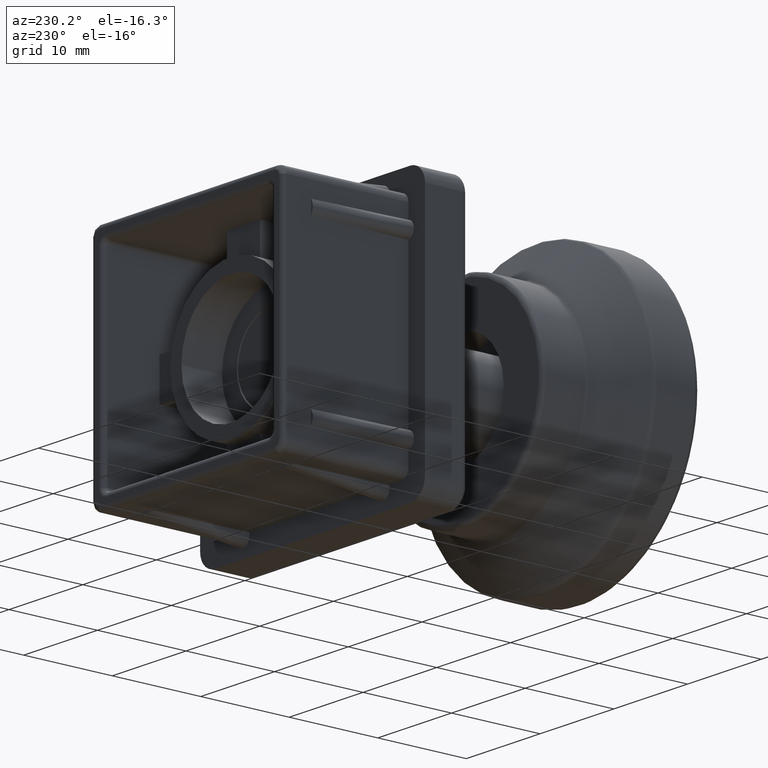
[diagram: clean part render]
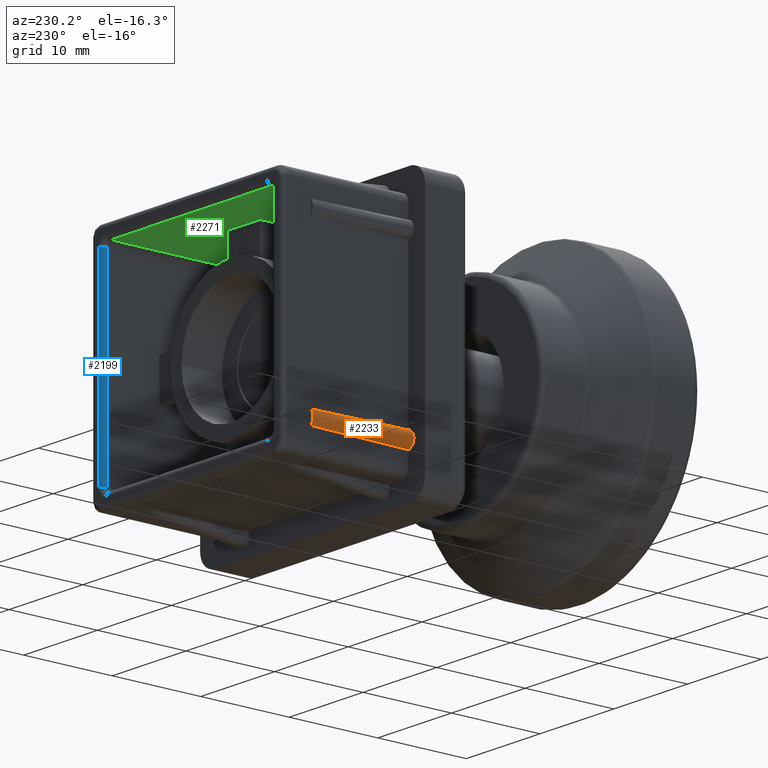
[diagram: same view with three faces highlighted in distinct colors, each labeled with its STEP entity id]
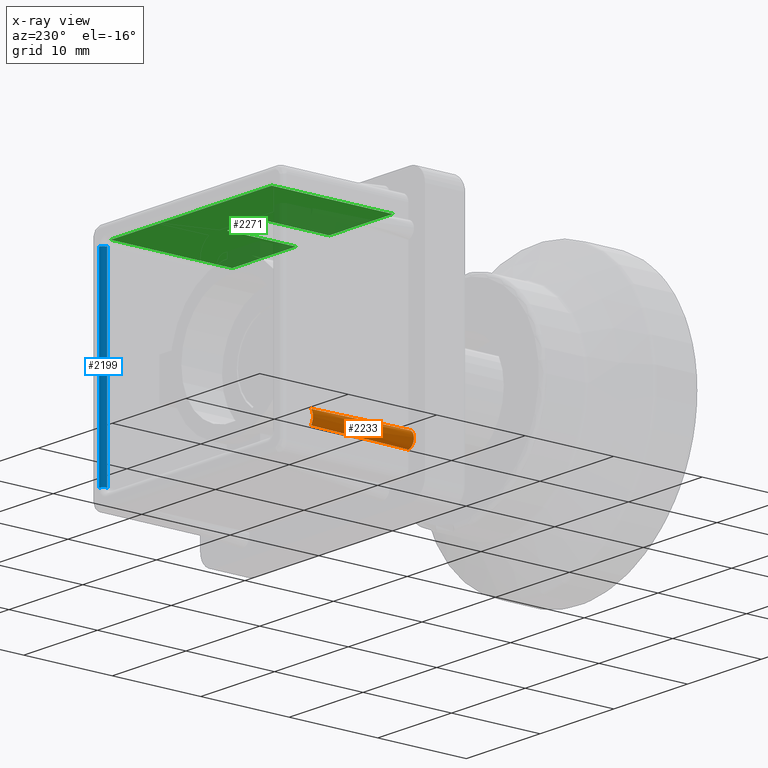
[diagram: x-ray of the same camera — body ghosted, the three highlighted faces saturated]
A machine part, auxiliary view with three faces highlighted in distinct colors.
The next image is the same camera in x-ray (body ghosted, the three faces saturated) — at least one of them is partly hidden behind the body in this view.
Their STEP definitions:

[orange] entity #2233 — the highlighted face is a freeform B-spline surface patch.
#19=B_SPLINE_SURFACE_WITH_KNOTS('',3,3,((#3985,#3986,#3987,#3988),(#3989,
#3990,#3991,#3992),(#3993,#3994,#3995,#3996),(#3997,#3998,#3999,#4000),
(#4001,#4002,#4003,#4004),(#4005,#4006,#4007,#4008),(#4009,#4010,#4011,
#4012)),.UNSPECIFIED.,.F.,.F.,.F.,(4,1,1,1,4),(4,4),(0.,0.285714285714286,
0.571428571428571,0.785714285714286,1.),(0.,1.),.UNSPECIFIED.);
#167=CIRCLE('',#2469,1.25);
#362=FACE_OUTER_BOUND('',#518,.T.);
#518=EDGE_LOOP('',(#1933,#1934,#1935,#1936));
#616=LINE('',#3631,#788);
#618=LINE('',#3635,#790);
#788=VECTOR('',#2785,11.001022679733);
#790=VECTOR('',#2787,11.001022679733);
#926=B_SPLINE_CURVE_WITH_KNOTS('',3,(#3905,#3906,#3907,#3908,#3909,#3910,
#3911),.UNSPECIFIED.,.F.,.F.,(4,1,1,1,4),(0.,0.285714285714286,0.571428571428571,
0.785714285714286,1.),.UNSPECIFIED.);
#1015=VERTEX_POINT('',#3628);
#1016=VERTEX_POINT('',#3630);
#1017=VERTEX_POINT('',#3632);
#1018=VERTEX_POINT('',#3634);
#1260=EDGE_CURVE('',#1015,#1016,#616,.T.);
#1262=EDGE_CURVE('',#1017,#1018,#618,.T.);
#1397=EDGE_CURVE('',#1018,#1015,#926,.T.);
#1408=EDGE_CURVE('',#1017,#1016,#167,.T.);
#1933=ORIENTED_EDGE('',*,*,#1397,.F.);
#1934=ORIENTED_EDGE('',*,*,#1262,.F.);
#1935=ORIENTED_EDGE('',*,*,#1408,.T.);
#1936=ORIENTED_EDGE('',*,*,#1260,.F.);
#2233=ADVANCED_FACE('',(#362),#19,.F.);
#2469=AXIS2_PLACEMENT_3D('',#3984,#3056,#3057);
#2785=DIRECTION('',(-5.04599916274376E-17,-0.999907037757963,-0.0136350959694269));
#2787=DIRECTION('',(-4.0998743197293E-17,0.999907037757963,-0.0136350959694268));
#3056=DIRECTION('center_axis',(0.,1.,0.));
#3057=DIRECTION('ref_axis',(-0.8,0.,-0.6));
#3628=CARTESIAN_POINT('',(4.44089209850063E-15,14.2,10.4));
#3630=CARTESIAN_POINT('',(4.44089209850063E-15,3.2,10.25));
#3631=CARTESIAN_POINT('',(5.27355936696949E-15,14.2,10.4));
#3632=CARTESIAN_POINT('',(4.44089209850063E-15,3.2,8.75));
#3634=CARTESIAN_POINT('',(4.44089209850063E-15,14.2,8.6));
#3635=CARTESIAN_POINT('',(4.40619762898109E-15,14.2,8.6));
#3905=CARTESIAN_POINT('Ctrl Pts',(4.40619762898109E-15,14.2,8.6));
#3906=CARTESIAN_POINT('Ctrl Pts',(-0.238195980410293,14.2,8.64366926307522));
#3907=CARTESIAN_POINT('Ctrl Pts',(-0.676788648949586,14.2,8.9305136453434));
#3908=CARTESIAN_POINT('Ctrl Pts',(-0.818084012586051,14.2,9.63576982070014));
#3909=CARTESIAN_POINT('Ctrl Pts',(-0.514988564364768,14.2,10.1923458302385));
#3910=CARTESIAN_POINT('Ctrl Pts',(-0.178646985307718,14.2,10.3672480526936));
#3911=CARTESIAN_POINT('Ctrl Pts',(5.27355936696949E-15,14.2,10.4));
#3984=CARTESIAN_POINT('Origin',(1.00000000000001,3.2,9.5));
#3985=CARTESIAN_POINT('Ctrl Pts',(4.40619762898109E-15,14.2,8.6));
#3986=CARTESIAN_POINT('Ctrl Pts',(4.55654033023241E-15,10.5333333333333,
8.65));
#3987=CARTESIAN_POINT('Ctrl Pts',(4.70688303148374E-15,6.86666666666667,
8.7));
#3988=CARTESIAN_POINT('Ctrl Pts',(4.85722573273506E-15,3.2,8.75));
#3989=CARTESIAN_POINT('Ctrl Pts',(-0.238195980410293,14.2,8.64366926307522));
#3990=CARTESIAN_POINT('Ctrl Pts',(-0.189662695303451,10.5333333333333,8.72056969330552));
#3991=CARTESIAN_POINT('Ctrl Pts',(-0.140462014934449,6.86666666666666,8.79567120953985));
#3992=CARTESIAN_POINT('Ctrl Pts',(-0.091928729827607,3.2,8.87257163977015));
#3993=CARTESIAN_POINT('Ctrl Pts',(-0.676788648949586,14.2,8.9305136453434));
#3994=CARTESIAN_POINT('Ctrl Pts',(-0.527701108902842,10.5333333333333,9.00427296035827));
#3995=CARTESIAN_POINT('Ctrl Pts',(-0.379280138315922,6.86666666666668,9.07811973642995));
#3996=CARTESIAN_POINT('Ctrl Pts',(-0.230192598269178,3.2,9.15187905144481));
#3997=CARTESIAN_POINT('Ctrl Pts',(-0.818084012586051,14.2,9.63576982070014));
#3998=CARTESIAN_POINT('Ctrl Pts',(-0.635175859294251,10.5333333333333,9.61677177219403));
#3999=CARTESIAN_POINT('Ctrl Pts',(-0.452384054758769,6.86666666666666,9.59755917480905));
#4000=CARTESIAN_POINT('Ctrl Pts',(-0.269475901466969,3.2,9.57856112630295));
#4001=CARTESIAN_POINT('Ctrl Pts',(-0.514988564364768,14.2,10.1923458302385));
#4002=CARTESIAN_POINT('Ctrl Pts',(-0.403825726633583,10.5333333333333,10.1132221459128));
#4003=CARTESIAN_POINT('Ctrl Pts',(-0.292448665899929,6.86666666666668,10.0342129828811));
#4004=CARTESIAN_POINT('Ctrl Pts',(-0.181285828168744,3.2,9.95508929855545));
#4005=CARTESIAN_POINT('Ctrl Pts',(-0.178646985307718,14.2,10.3672480526936));
#4006=CARTESIAN_POINT('Ctrl Pts',(-0.141943130724713,10.5333333333333,10.2974446324623));
#4007=CARTESIAN_POINT('Ctrl Pts',(-0.10565040195371,6.86666666666666,10.2278746904036));
#4008=CARTESIAN_POINT('Ctrl Pts',(-0.0689465473707042,3.2,10.1580712701724));
#4009=CARTESIAN_POINT('Ctrl Pts',(5.27355936696949E-15,14.2,10.4));
#4010=CARTESIAN_POINT('Ctrl Pts',(5.08852219619863E-15,10.5333333333333,
10.35));
#4011=CARTESIAN_POINT('Ctrl Pts',(4.90348502542778E-15,6.86666666666667,
10.3));
#4012=CARTESIAN_POINT('Ctrl Pts',(4.71844785465692E-15,3.2,10.25));

[blue] entity #2199 — the highlighted cylindrical surface (edge-blend (fillet) strip) has radius 0.5 mm, axis along (0, -0, 1).
#132=CIRCLE('',#2399,0.499999999999998);
#136=CIRCLE('',#2404,0.5);
#328=FACE_OUTER_BOUND('',#482,.T.);
#482=EDGE_LOOP('',(#1738,#1739,#1740,#1741));
#637=LINE('',#3680,#809);
#641=LINE('',#3717,#813);
#809=VECTOR('',#2820,21.8);
#813=VECTOR('',#2864,21.8);
#1035=VERTEX_POINT('',#3676);
#1037=VERTEX_POINT('',#3679);
#1047=VERTEX_POINT('',#3705);
#1049=VERTEX_POINT('',#3711);
#1284=EDGE_CURVE('',#1037,#1035,#637,.T.);
#1297=EDGE_CURVE('',#1047,#1037,#132,.T.);
#1301=EDGE_CURVE('',#1035,#1049,#136,.T.);
#1303=EDGE_CURVE('',#1049,#1047,#641,.T.);
#1738=ORIENTED_EDGE('',*,*,#1297,.T.);
#1739=ORIENTED_EDGE('',*,*,#1284,.T.);
#1740=ORIENTED_EDGE('',*,*,#1301,.T.);
#1741=ORIENTED_EDGE('',*,*,#1303,.T.);
#2114=CYLINDRICAL_SURFACE('',#2406,0.5);
#2199=ADVANCED_FACE('',(#328),#2114,.T.);
#2399=AXIS2_PLACEMENT_3D('',#3706,#2848,#2849);
#2404=AXIS2_PLACEMENT_3D('',#3714,#2858,#2859);
#2406=AXIS2_PLACEMENT_3D('',#3716,#2862,#2863);
#2820=DIRECTION('',(-1.94775969232484E-16,0.,1.));
#2848=DIRECTION('center_axis',(0.,0.,1.));
#2849=DIRECTION('ref_axis',(-1.,0.,0.));
#2858=DIRECTION('center_axis',(0.,0.,-1.));
#2859=DIRECTION('ref_axis',(0.,-1.,0.));
#2862=DIRECTION('center_axis',(1.94775969232484E-16,0.,-1.));
#2863=DIRECTION('ref_axis',(-0.707106781186546,-0.707106781186549,0.));
#2864=DIRECTION('',(1.94775969232484E-16,0.,-1.));
#3676=CARTESIAN_POINT('',(24.9,0.,10.9));
#3679=CARTESIAN_POINT('',(24.9,0.,-10.9));
#3680=CARTESIAN_POINT('',(24.9,0.,5.7));
#3705=CARTESIAN_POINT('',(24.4,0.5,-10.9));
#3706=CARTESIAN_POINT('Origin',(24.9,0.5,-10.9));
#3711=CARTESIAN_POINT('',(24.4,0.5,10.9));
#3714=CARTESIAN_POINT('Origin',(24.9,0.5,10.9));
#3716=CARTESIAN_POINT('Origin',(24.9,0.5,5.7));
#3717=CARTESIAN_POINT('',(24.4,0.5,5.7));

[green] entity #2271 — the highlighted planar face has unit normal (-0, -0, 1).
#263=PLANE('',#2520);
#400=FACE_OUTER_BOUND('',#564,.T.);
#564=EDGE_LOOP('',(#2078,#2079,#2080,#2081,#2082,#2083,#2084,#2085));
#645=LINE('',#3730,#817);
#647=LINE('',#3733,#819);
#652=LINE('',#3747,#824);
#711=LINE('',#4294,#883);
#715=LINE('',#4303,#887);
#717=LINE('',#4307,#889);
#729=LINE('',#4336,#901);
#730=LINE('',#4338,#902);
#817=VECTOR('',#2878,13.7);
#819=VECTOR('',#2882,21.8);
#824=VECTOR('',#2897,13.7);
#883=VECTOR('',#3090,7.8);
#887=VECTOR('',#3096,7.8);
#889=VECTOR('',#3102,4.5);
#901=VECTOR('',#3134,8.65000000000001);
#902=VECTOR('',#3137,8.64999999999999);
#1044=VERTEX_POINT('',#3694);
#1048=VERTEX_POINT('',#3707);
#1053=VERTEX_POINT('',#3727);
#1058=VERTEX_POINT('',#3744);
#1118=VERTEX_POINT('',#4291);
#1119=VERTEX_POINT('',#4293);
#1122=VERTEX_POINT('',#4300);
#1123=VERTEX_POINT('',#4302);
#1309=EDGE_CURVE('',#1053,#1048,#645,.T.);
#1311=EDGE_CURVE('',#1048,#1044,#647,.T.);
#1318=EDGE_CURVE('',#1044,#1058,#652,.T.);
#1418=EDGE_CURVE('',#1119,#1118,#711,.T.);
#1422=EDGE_CURVE('',#1123,#1122,#715,.T.);
#1425=EDGE_CURVE('',#1118,#1123,#717,.T.);
#1440=EDGE_CURVE('',#1053,#1119,#729,.T.);
#1441=EDGE_CURVE('',#1122,#1058,#730,.T.);
#2078=ORIENTED_EDGE('',*,*,#1309,.F.);
#2079=ORIENTED_EDGE('',*,*,#1440,.T.);
#2080=ORIENTED_EDGE('',*,*,#1418,.T.);
#2081=ORIENTED_EDGE('',*,*,#1425,.T.);
#2082=ORIENTED_EDGE('',*,*,#1422,.T.);
#2083=ORIENTED_EDGE('',*,*,#1441,.T.);
#2084=ORIENTED_EDGE('',*,*,#1318,.F.);
#2085=ORIENTED_EDGE('',*,*,#1311,.F.);
#2271=ADVANCED_FACE('',(#400),#263,.F.);
#2520=AXIS2_PLACEMENT_3D('',#4378,#3187,#3188);
#2878=DIRECTION('',(0.,-1.,0.));
#2882=DIRECTION('',(-1.,0.,0.));
#2897=DIRECTION('',(0.,1.,0.));
#3090=DIRECTION('',(0.,-1.,0.));
#3096=DIRECTION('',(0.,1.,0.));
#3102=DIRECTION('',(-1.,0.,0.));
#3134=DIRECTION('',(-1.,0.,0.));
#3137=DIRECTION('',(-1.,0.,0.));
#3187=DIRECTION('center_axis',(0.,0.,-1.));
#3188=DIRECTION('ref_axis',(-1.,0.,0.));
#3694=CARTESIAN_POINT('',(2.1,0.5,-11.4));
#3707=CARTESIAN_POINT('',(23.9,0.5,-11.4));
#3727=CARTESIAN_POINT('',(23.9,14.2,-11.4));
#3730=CARTESIAN_POINT('',(23.9,0.,-11.4));
#3733=CARTESIAN_POINT('',(12.2,0.5,-11.4));
#3744=CARTESIAN_POINT('',(2.1,14.2,-11.4));
#3747=CARTESIAN_POINT('',(2.1,0.,-11.4));
#4291=CARTESIAN_POINT('',(15.25,6.4,-11.4));
#4293=CARTESIAN_POINT('',(15.25,14.2,-11.4));
#4294=CARTESIAN_POINT('',(15.25,7.1,-11.4));
#4300=CARTESIAN_POINT('',(10.75,14.2,-11.4));
#4302=CARTESIAN_POINT('',(10.75,6.4,-11.4));
#4303=CARTESIAN_POINT('',(10.75,7.1,-11.4));
#4307=CARTESIAN_POINT('',(18.7,6.4,-11.4));
#4336=CARTESIAN_POINT('',(1.6,14.2,-11.4));
#4338=CARTESIAN_POINT('',(1.6,14.2,-11.4));
#4378=CARTESIAN_POINT('Origin',(24.4,0.,-11.4));